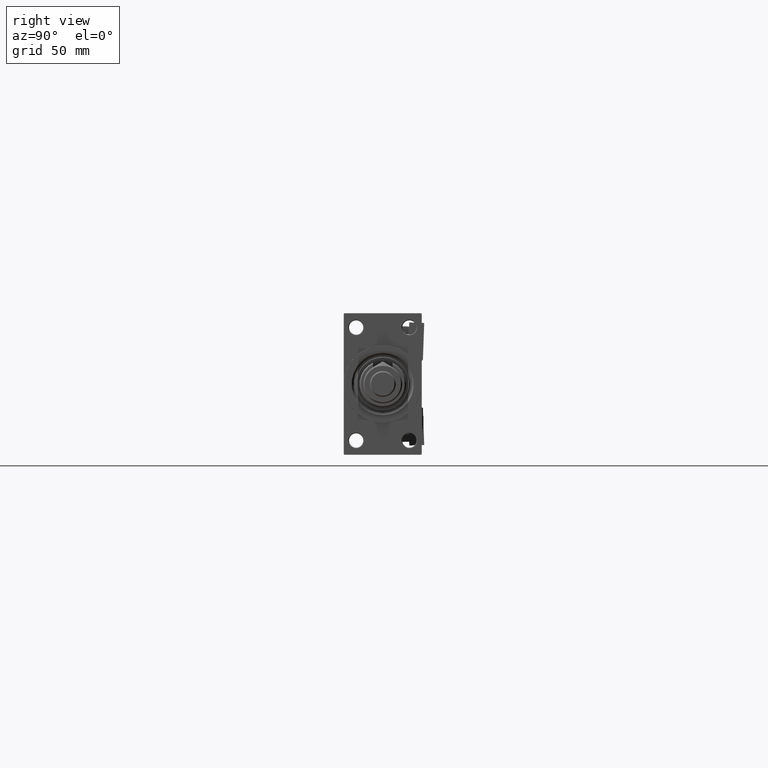
[diagram: clean part render]
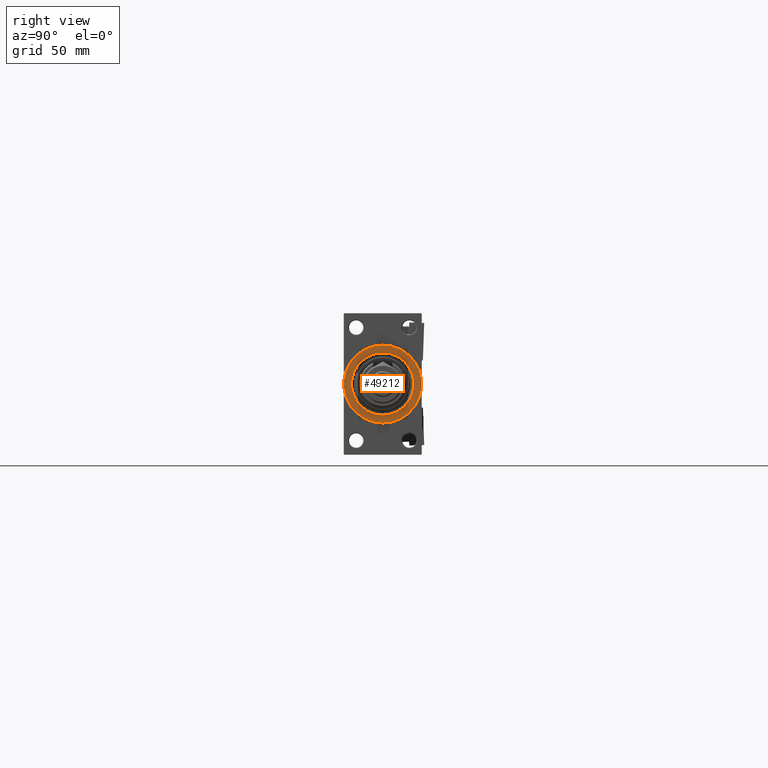
[diagram: same view with one face highlighted and labeled with its STEP entity id]
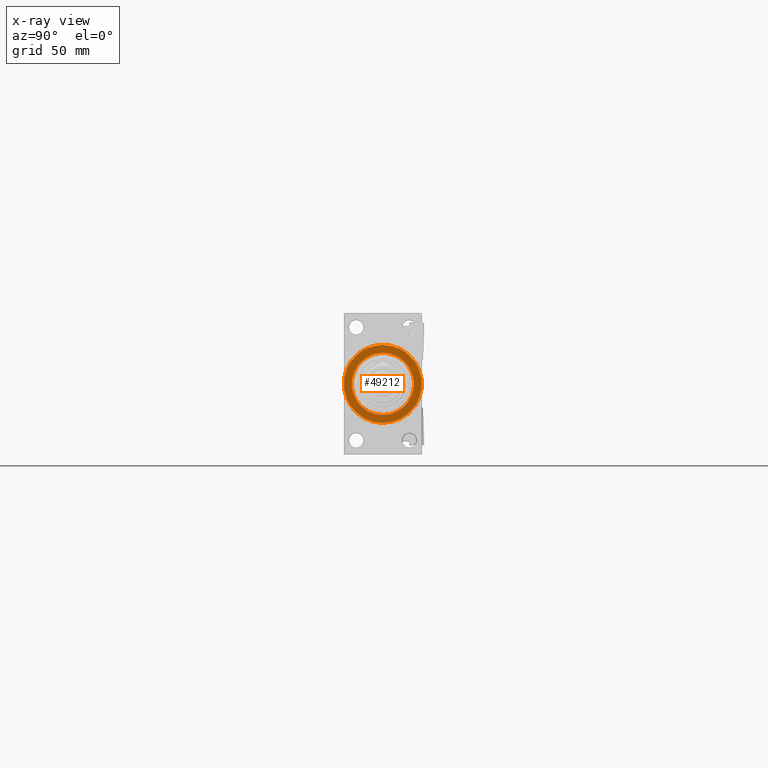
[diagram: x-ray of the same camera — body ghosted, the highlighted face saturated]
A machine part, right view. The second image highlights one B-rep face of the part: STEP entity #49212.
The next image is the same camera in x-ray: the body ghosted, the highlighted face saturated — about 0% of this face is hidden behind the body in this view.
In plain terms, the highlighted planar face has unit normal (1, 0, 0).
Its self-contained STEP definition (entity closure, byte-faithful):
#1815 = ORIENTED_EDGE ( 'NONE', *, *, #8518, .T. ) ;
#1954 = AXIS2_PLACEMENT_3D ( 'NONE', #39101, #2691, #47353 ) ;
#2269 = AXIS2_PLACEMENT_3D ( 'NONE', #46330, #6179, #21887 ) ;
#2691 = DIRECTION ( 'NONE',  ( 1.000000000000000000, 0.000000000000000000, 0.000000000000000000 ) ) ;
#6179 = DIRECTION ( 'NONE',  ( 1.000000000000000000, 0.000000000000000000, 0.000000000000000000 ) ) ;
#6448 = CARTESIAN_POINT ( 'NONE',  ( 428.0000000000000000, 2.939152317953637245E-15, 23.99999999999991473 ) ) ;
#6678 = FACE_OUTER_BOUND ( 'NONE', #37070, .T. ) ;
#8518 = EDGE_CURVE ( 'NONE', #46539, #40454, #27402, .T. ) ;
#10258 = VERTEX_POINT ( 'NONE', #19971 ) ;
#11774 = CARTESIAN_POINT ( 'NONE',  ( 428.0000000000000000, 0.000000000000000000, -23.99999999999991473 ) ) ;
#14645 = AXIS2_PLACEMENT_3D ( 'NONE', #44880, #32382, #32914 ) ;
#17630 = CARTESIAN_POINT ( 'NONE',  ( 428.0000000000000000, 0.000000000000000000, 30.00000000000000000 ) ) ;
#18354 = AXIS2_PLACEMENT_3D ( 'NONE', #47852, #18634, #51843 ) ;
#18634 = DIRECTION ( 'NONE',  ( 1.000000000000000000, 0.000000000000000000, 0.000000000000000000 ) ) ;
#19480 = DIRECTION ( 'NONE',  ( -1.000000000000000000, -0.000000000000000000, -0.000000000000000000 ) ) ;
#19971 = CARTESIAN_POINT ( 'NONE',  ( 428.0000000000000000, 3.673940397442059178E-15, -30.00000000000000000 ) ) ;
#21799 = EDGE_LOOP ( 'NONE', ( #47759, #1815 ) ) ;
#21887 = DIRECTION ( 'NONE',  ( 0.000000000000000000, 0.000000000000000000, -1.000000000000000000 ) ) ;
#23112 = EDGE_CURVE ( 'NONE', #10258, #34156, #31130, .T. ) ;
#24549 = EDGE_CURVE ( 'NONE', #34156, #10258, #30227, .T. ) ;
#25880 = EDGE_CURVE ( 'NONE', #40454, #46539, #42178, .T. ) ;
#27402 = CIRCLE ( 'NONE', #14645, 23.99999999999991473 ) ;
#28168 = ORIENTED_EDGE ( 'NONE', *, *, #23112, .T. ) ;
#30227 = CIRCLE ( 'NONE', #18354, 30.00000000000000000 ) ;
#31130 = CIRCLE ( 'NONE', #2269, 30.00000000000000000 ) ;
#32382 = DIRECTION ( 'NONE',  ( -1.000000000000000000, -0.000000000000000000, -0.000000000000000000 ) ) ;
#32914 = DIRECTION ( 'NONE',  ( 0.000000000000000000, 0.000000000000000000, -1.000000000000000000 ) ) ;
#34156 = VERTEX_POINT ( 'NONE', #17630 ) ;
#34890 = CARTESIAN_POINT ( 'NONE',  ( 428.0000000000000000, 0.000000000000000000, 0.000000000000000000 ) ) ;
#37070 = EDGE_LOOP ( 'NONE', ( #45170, #28168 ) ) ;
#38312 = PLANE ( 'NONE',  #1954 ) ;
#39101 = CARTESIAN_POINT ( 'NONE',  ( 428.0000000000000000, 0.000000000000000000, 0.000000000000000000 ) ) ;
#39645 = AXIS2_PLACEMENT_3D ( 'NONE', #34890, #19480, #43390 ) ;
#40454 = VERTEX_POINT ( 'NONE', #11774 ) ;
#42178 = CIRCLE ( 'NONE', #39645, 23.99999999999991473 ) ;
#43390 = DIRECTION ( 'NONE',  ( 0.000000000000000000, 0.000000000000000000, -1.000000000000000000 ) ) ;
#44880 = CARTESIAN_POINT ( 'NONE',  ( 428.0000000000000000, 0.000000000000000000, 0.000000000000000000 ) ) ;
#45170 = ORIENTED_EDGE ( 'NONE', *, *, #24549, .T. ) ;
#46330 = CARTESIAN_POINT ( 'NONE',  ( 428.0000000000000000, 0.000000000000000000, 0.000000000000000000 ) ) ;
#46539 = VERTEX_POINT ( 'NONE', #6448 ) ;
#46822 = FACE_BOUND ( 'NONE', #21799, .T. ) ;
#47353 = DIRECTION ( 'NONE',  ( 0.000000000000000000, 0.000000000000000000, -1.000000000000000000 ) ) ;
#47759 = ORIENTED_EDGE ( 'NONE', *, *, #25880, .T. ) ;
#47852 = CARTESIAN_POINT ( 'NONE',  ( 428.0000000000000000, 0.000000000000000000, 0.000000000000000000 ) ) ;
#49212 = ADVANCED_FACE ( 'NONE', ( #46822, #6678 ), #38312, .T. ) ;
#51843 = DIRECTION ( 'NONE',  ( 0.000000000000000000, 0.000000000000000000, -1.000000000000000000 ) ) ;